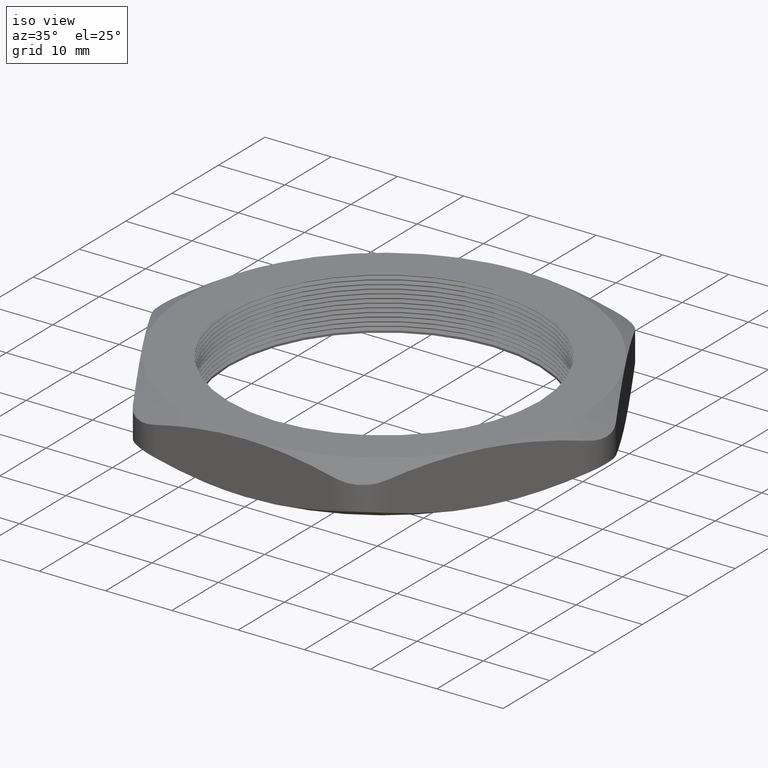
[diagram: clean part render]
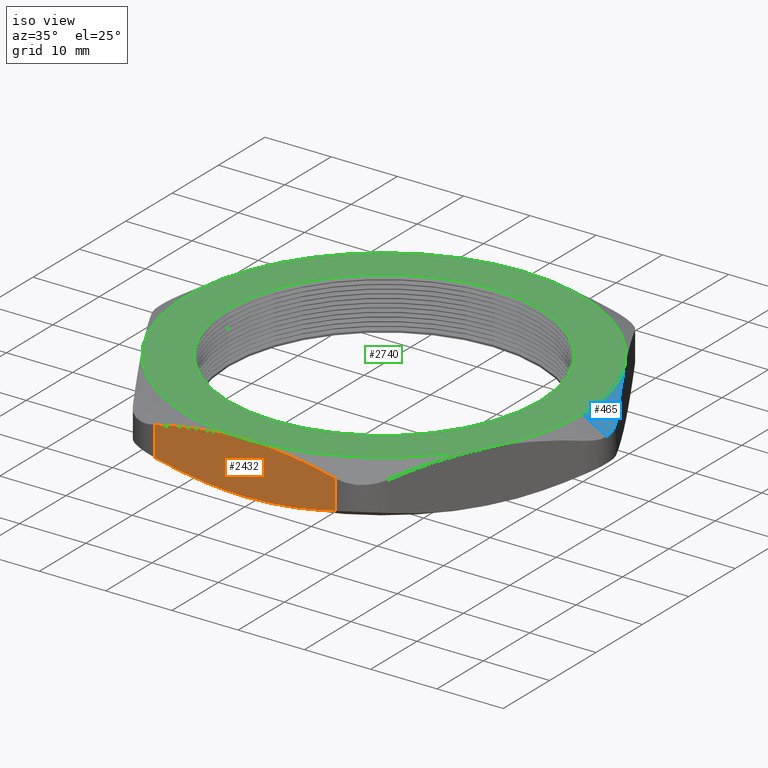
[diagram: same view with three faces highlighted in distinct colors, each labeled with its STEP entity id]
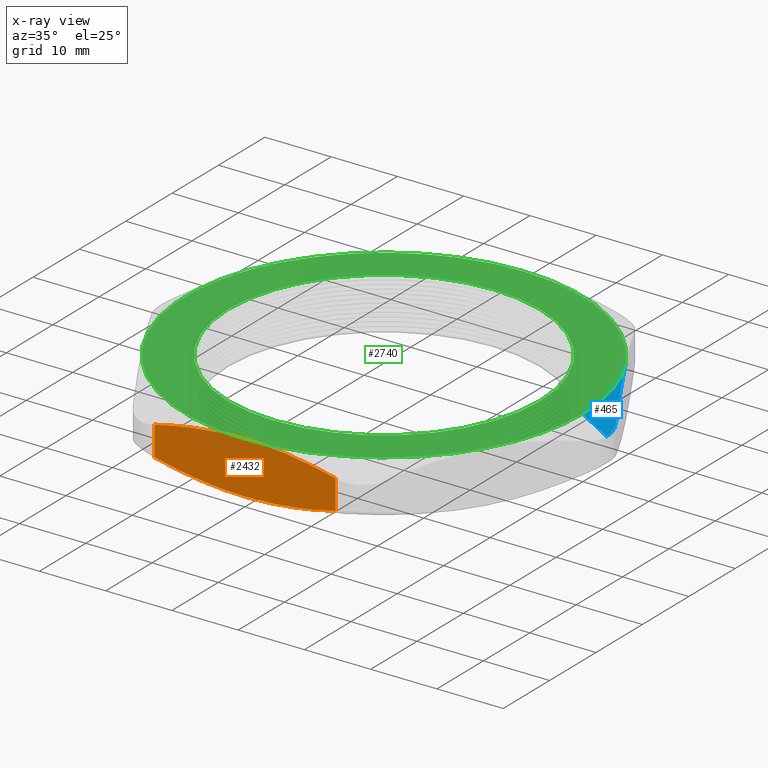
[diagram: x-ray of the same camera — body ghosted, the three highlighted faces saturated]
A machine part, iso view with three faces highlighted in distinct colors.
The next image is the same camera in x-ray (body ghosted, the three faces saturated) — at least one of them is partly hidden behind the body in this view.
Their STEP definitions:

[orange] entity #2432 — the highlighted planar face has unit normal (-0, 1, 0).
#1248 = CARTESIAN_POINT ( 'NONE',  ( 2.365849761790801500E-016, -1.179999999999999900, 0.3100000000000000000 ) ) ;
#1249 = CARTESIAN_POINT ( 'NONE',  ( -0.09043671930185660800, -1.179999999999999900, 0.3100000000000001600 ) ) ;
#1250 = CARTESIAN_POINT ( 'NONE',  ( -0.1803601917600251800, -1.179999999999999500, 0.3039296812339023500 ) ) ;
#1251 = CARTESIAN_POINT ( 'NONE',  ( -0.3592866603774269600, -1.180000000000000200, 0.2809023044652400000 ) ) ;
#1252 = CARTESIAN_POINT ( 'NONE',  ( -0.4483414298499406300, -1.179999999999999700, 0.2639706617955099900 ) ) ;
#1253 = CARTESIAN_POINT ( 'NONE',  ( -0.5369357503462982600, -1.179999999999999900, 0.2427859541343179400 ) ) ;
#1254 = CARTESIAN_POINT ( 'NONE',  ( -0.5369357503463523300, -1.179999999999999900, 0.06721404586569511300 ) ) ;
#1255 = B_SPLINE_CURVE_WITH_KNOTS ( 'NONE', 3,
 ( #1253, #1252, #1251, #1250, #1249, #1248 ),
 .UNSPECIFIED., .F., .F.,
 ( 4, 2, 4 ),
 ( 0.03544491570111547200, 0.04231837440594568600, 0.04919183311077590700 ),
 .UNSPECIFIED. ) ;
#1287 = DIRECTION ( 'NONE',  ( -1.000000000000000000, -2.004957425246442400E-016, 0.0000000000000000000 ) ) ;
#1288 = DIRECTION ( 'NONE',  ( -2.004957425246442400E-016, 1.000000000000000000, 0.0000000000000000000 ) ) ;
#1289 = CARTESIAN_POINT ( 'NONE',  ( -0.6812733176437586500, -1.179999999999999900, 0.3100000000000000000 ) ) ;
#1290 = AXIS2_PLACEMENT_3D ( 'NONE', #1289, #1288, #1287 ) ;
#1291 = PLANE ( 'NONE',  #1290 ) ;
#1292 = FACE_OUTER_BOUND ( 'NONE', #2572, .T. ) ;
#1306 = DIRECTION ( 'NONE',  ( 0.0000000000000000000, 0.0000000000000000000, 1.000000000000000000 ) ) ;
#1307 = VECTOR ( 'NONE', #1306, 39.37007874015748100 ) ;
#1308 = CARTESIAN_POINT ( 'NONE',  ( 0.5369357503463518800, -1.179999999999999700, 0.3100000000000000000 ) ) ;
#1309 = LINE ( 'NONE', #1308, #1307 ) ;
#1310 = CARTESIAN_POINT ( 'NONE',  ( 2.365849761790802000E-016, -1.180000000000000200, 0.0000000000000000000 ) ) ;
#1311 = CARTESIAN_POINT ( 'NONE',  ( 0.04513680144218985800, -1.179999999999999500, -2.407707826447263200E-016 ) ) ;
#1312 = CARTESIAN_POINT ( 'NONE',  ( 0.09040044257290004400, -1.180000000000000200, 0.001500169657117304800 ) ) ;
#1313 = CARTESIAN_POINT ( 'NONE',  ( 0.1584856043568609000, -1.180000000000000200, 0.005994061912108385500 ) ) ;
#1314 = CARTESIAN_POINT ( 'NONE',  ( 0.1812379093699328400, -1.179999999999999900, 0.007868708027574654700 ) ) ;
#1315 = CARTESIAN_POINT ( 'NONE',  ( 0.2264847364169943800, -1.179999999999999700, 0.01231598222474834300 ) ) ;
#1316 = CARTESIAN_POINT ( 'NONE',  ( 0.2490155983964343600, -1.179999999999999900, 0.01489006772394748500 ) ) ;
#1317 = CARTESIAN_POINT ( 'NONE',  ( 0.3612328827272187100, -1.179999999999999500, 0.02941530187154136500 ) ) ;
#1318 = CARTESIAN_POINT ( 'NONE',  ( 0.4496078843157641500, -1.179999999999999300, 0.04633217327872736500 ) ) ;
#1319 = CARTESIAN_POINT ( 'NONE',  ( 0.5369357503463522100, -1.179999999999999700, 0.06721404586569487700 ) ) ;
#1320 = CARTESIAN_POINT ( 'NONE',  ( 0.5369357503463522100, -1.179999999999999700, 0.06721404586569487700 ) ) ;
#1321 = B_SPLINE_CURVE_WITH_KNOTS ( 'NONE', 3,
 ( #1319, #1318, #1317, #1316, #1315, #1314, #1313, #1312, #1311, #1310 ),
 .UNSPECIFIED., .F., .F.,
 ( 4, 2, 2, 2, 4 ),
 ( 0.08256158071241076500, 0.08942644235430620400, 0.09114265776478007500, 0.09285887317525393100, 0.09629130399620164400 ),
 .UNSPECIFIED. ) ;
#1322 = CARTESIAN_POINT ( 'NONE',  ( 2.365849761790802000E-016, -1.180000000000000200, 0.0000000000000000000 ) ) ;
#1512 = CARTESIAN_POINT ( 'NONE',  ( 0.5369357503463522100, -1.179999999999999700, 0.2427859541343050900 ) ) ;
#1513 = CARTESIAN_POINT ( 'NONE',  ( 0.4496078843157642600, -1.179999999999999500, 0.2636678267212726500 ) ) ;
#1514 = CARTESIAN_POINT ( 'NONE',  ( 0.3612328827272187600, -1.179999999999999900, 0.2805846981284586500 ) ) ;
#1515 = CARTESIAN_POINT ( 'NONE',  ( 0.2490155983964342800, -1.179999999999999900, 0.2951099322760525300 ) ) ;
#1516 = CARTESIAN_POINT ( 'NONE',  ( 0.2264847364169941000, -1.180000000000000200, 0.2976840177752518300 ) ) ;
#1517 = CARTESIAN_POINT ( 'NONE',  ( 0.1812379093699325600, -1.179999999999999700, 0.3021312919724253300 ) ) ;
#1518 = CARTESIAN_POINT ( 'NONE',  ( 0.1584856043568612100, -1.179999999999999500, 0.3040059380878916100 ) ) ;
#1519 = CARTESIAN_POINT ( 'NONE',  ( 0.09040044257290041900, -1.179999999999999900, 0.3084998303428827000 ) ) ;
#1520 = CARTESIAN_POINT ( 'NONE',  ( 0.04513680144219005300, -1.179999999999999900, 0.3100000000000001600 ) ) ;
#1521 = CARTESIAN_POINT ( 'NONE',  ( 2.365849761790801500E-016, -1.179999999999999900, 0.3100000000000000000 ) ) ;
#1522 = CARTESIAN_POINT ( 'NONE',  ( 2.365849761790801500E-016, -1.179999999999999900, 0.3100000000000000000 ) ) ;
#1523 = B_SPLINE_CURVE_WITH_KNOTS ( 'NONE', 3,
 ( #1521, #1520, #1519, #1518, #1517, #1516, #1515, #1514, #1513, #1512 ),
 .UNSPECIFIED., .F., .F.,
 ( 4, 2, 2, 2, 4 ),
 ( 0.04919183311077590700, 0.05262236379760327300, 0.05433762914101695300, 0.05605289448443063300, 0.06291395585808536000 ),
 .UNSPECIFIED. ) ;
#1524 = CARTESIAN_POINT ( 'NONE',  ( 0.5369357503463522100, -1.179999999999999700, 0.2427859541343050900 ) ) ;
#1932 = CARTESIAN_POINT ( 'NONE',  ( -0.5369357503462982600, -1.179999999999999900, 0.2427859541343179400 ) ) ;
#2043 = DIRECTION ( 'NONE',  ( 0.0000000000000000000, 0.0000000000000000000, -1.000000000000000000 ) ) ;
#2044 = VECTOR ( 'NONE', #2043, 39.37007874015748100 ) ;
#2045 = CARTESIAN_POINT ( 'NONE',  ( -0.5369357503463522100, -1.179999999999999900, 0.3100000000000000000 ) ) ;
#2046 = LINE ( 'NONE', #2045, #2044 ) ;
#2058 = CARTESIAN_POINT ( 'NONE',  ( -0.5369357503463523300, -1.179999999999999900, 0.06721404586569511300 ) ) ;
#2059 = CARTESIAN_POINT ( 'NONE',  ( -0.4483414298499867100, -1.179999999999999900, 0.04602933820449919800 ) ) ;
#2060 = CARTESIAN_POINT ( 'NONE',  ( -0.3592866603774632100, -1.179999999999999500, 0.02909769553476565500 ) ) ;
#2061 = CARTESIAN_POINT ( 'NONE',  ( -0.1803601917600436700, -1.179999999999999900, 0.006070318766098837900 ) ) ;
#2062 = CARTESIAN_POINT ( 'NONE',  ( -0.09043671930186598900, -1.179999999999999900, -2.280986361897407400E-016 ) ) ;
#2063 = CARTESIAN_POINT ( 'NONE',  ( 2.365849761790802000E-016, -1.180000000000000200, 0.0000000000000000000 ) ) ;
#2078 = B_SPLINE_CURVE_WITH_KNOTS ( 'NONE', 3,
 ( #2063, #2062, #2061, #2060, #2059, #2058 ),
 .UNSPECIFIED., .F., .F.,
 ( 4, 2, 4 ),
 ( 0.09629130399620164400, 0.1031685698360219200, 0.1100458356758422000 ),
 .UNSPECIFIED. ) ;
#2420 = EDGE_CURVE ( 'NONE', #2743, #2541, #1255, .T. ) ;
#2421 = ORIENTED_EDGE ( 'NONE', *, *, #2784, .T. ) ;
#2422 = VERTEX_POINT ( 'NONE', #1254 ) ;
#2432 = ADVANCED_FACE ( 'NONE', ( #1292 ), #1291, .F. ) ;
#2433 = ORIENTED_EDGE ( 'NONE', *, *, #2443, .F. ) ;
#2443 = EDGE_CURVE ( 'NONE', #2444, #2445, #1321, .T. ) ;
#2444 = VERTEX_POINT ( 'NONE', #1320 ) ;
#2445 = VERTEX_POINT ( 'NONE', #1322 ) ;
#2446 = ORIENTED_EDGE ( 'NONE', *, *, #2447, .T. ) ;
#2447 = EDGE_CURVE ( 'NONE', #2444, #2538, #1309, .T. ) ;
#2538 = VERTEX_POINT ( 'NONE', #1524 ) ;
#2539 = ORIENTED_EDGE ( 'NONE', *, *, #2540, .F. ) ;
#2540 = EDGE_CURVE ( 'NONE', #2541, #2538, #1523, .T. ) ;
#2541 = VERTEX_POINT ( 'NONE', #1522 ) ;
#2572 = EDGE_LOOP ( 'NONE', ( #2433, #2446, #2539, #2742, #2421, #2796 ) ) ;
#2742 = ORIENTED_EDGE ( 'NONE', *, *, #2420, .F. ) ;
#2743 = VERTEX_POINT ( 'NONE', #1932 ) ;
#2784 = EDGE_CURVE ( 'NONE', #2743, #2422, #2046, .T. ) ;
#2796 = ORIENTED_EDGE ( 'NONE', *, *, #2797, .F. ) ;
#2797 = EDGE_CURVE ( 'NONE', #2445, #2422, #2078, .T. ) ;

[blue] entity #465 — the highlighted conical surface has half-angle 60 deg.
#287 = DIRECTION ( 'NONE',  ( 1.000000000000000000, 0.0000000000000000000, 0.0000000000000000000 ) ) ;
#288 = DIRECTION ( 'NONE',  ( 0.0000000000000000000, 0.0000000000000000000, -1.000000000000000000 ) ) ;
#295 = CARTESIAN_POINT ( 'NONE',  ( 0.0000000000000000000, 0.0000000000000000000, 0.3100000000000000000 ) ) ;
#296 = AXIS2_PLACEMENT_3D ( 'NONE', #295, #288, #287 ) ;
#297 = CONICAL_SURFACE ( 'NONE', #296, 1.180000000000000200, 1.047197551196600100 ) ;
#298 = FACE_OUTER_BOUND ( 'NONE', #2605, .T. ) ;
#465 = ADVANCED_FACE ( 'NONE', ( #298 ), #297, .T. ) ;
#697 = ORIENTED_EDGE ( 'NONE', *, *, #698, .T. ) ;
#698 = EDGE_CURVE ( 'NONE', #2608, #699, #1108, .T. ) ;
#699 = VERTEX_POINT ( 'NONE', #1104 ) ;
#700 = VERTEX_POINT ( 'NONE', #1103 ) ;
#1103 = CARTESIAN_POINT ( 'NONE',  ( 1.290377851638813600, 0.1250000000000003600, 0.2427859541343050100 ) ) ;
#1104 = CARTESIAN_POINT ( 'NONE',  ( 1.323871500692703800, -1.232579635649854100E-024, 0.2269357503463525200 ) ) ;
#1105 = DIRECTION ( 'NONE',  ( 0.8660254037844397100, 0.0000000000000000000, -0.4999999999999979500 ) ) ;
#1106 = VECTOR ( 'NONE', #1105, 39.37007874015748900 ) ;
#1107 = CARTESIAN_POINT ( 'NONE',  ( 1.180000000000000200, 0.0000000000000000000, 0.3100000000000000000 ) ) ;
#1108 = LINE ( 'NONE', #1107, #1106 ) ;
#1587 = CARTESIAN_POINT ( 'NONE',  ( 1.323871500692704400, 0.01095095147729039700, 0.2269357503463524700 ) ) ;
#1588 = CARTESIAN_POINT ( 'NONE',  ( 1.323871500692703800, -1.232579635649854100E-024, 0.2269357503463525200 ) ) ;
#1589 = B_SPLINE_CURVE_WITH_KNOTS ( 'NONE', 3,
 ( #1588, #1587, #1643, #1642, #1641, #1640, #1639, #1638 ),
 .UNSPECIFIED., .F., .F.,
 ( 4, 2, 2, 4 ),
 ( 0.003343581398575299100, 0.004176957635011804700, 0.005010333871448310700, 0.006677086344321323700 ),
 .UNSPECIFIED. ) ;
#1629 = CARTESIAN_POINT ( 'NONE',  ( 1.021909976465638100, 0.5899999999999999700, 0.3100000000000000000 ) ) ;
#1630 = CARTESIAN_POINT ( 'NONE',  ( 1.067459181867329100, 0.5111064619998796400, 0.3100000000000000500 ) ) ;
#1631 = CARTESIAN_POINT ( 'NONE',  ( 1.112566298939980000, 0.4329786434470912500, 0.3038445522537129900 ) ) ;
#1632 = CARTESIAN_POINT ( 'NONE',  ( 1.202005897894103900, 0.2780647138499645600, 0.2807479695387029000 ) ) ;
#1633 = CARTESIAN_POINT ( 'NONE',  ( 1.246341198180637200, 0.2012737211848660000, 0.2638460768298028200 ) ) ;
#1634 = CARTESIAN_POINT ( 'NONE',  ( 1.290377851638813600, 0.1250000000000003600, 0.2427859541343050100 ) ) ;
#1638 = CARTESIAN_POINT ( 'NONE',  ( 1.290377851638813600, 0.1250000000000003600, 0.2427859541343050100 ) ) ;
#1639 = CARTESIAN_POINT ( 'NONE',  ( 1.301163024300264800, 0.1063195329819646200, 0.2376280449449062200 ) ) ;
#1640 = CARTESIAN_POINT ( 'NONE',  ( 1.309608273902644400, 0.08602256121026832800, 0.2336403273867144700 ) ) ;
#1641 = CARTESIAN_POINT ( 'NONE',  ( 1.318085377249127700, 0.05456655859989943700, 0.2296491859462562200 ) ) ;
#1642 = CARTESIAN_POINT ( 'NONE',  ( 1.320238384401354300, 0.04387041525387968400, 0.2286388179600905800 ) ) ;
#1643 = CARTESIAN_POINT ( 'NONE',  ( 1.323141469423208900, 0.02203945126250706600, 0.2272774143254681600 ) ) ;
#1645 = B_SPLINE_CURVE_WITH_KNOTS ( 'NONE', 3,
 ( #1634, #1633, #1632, #1631, #1630, #1629 ),
 .UNSPECIFIED., .F., .F.,
 ( 4, 2, 4 ),
 ( 0.003767047510153077700, 0.01063822244227694300, 0.01750939737440080500 ),
 .UNSPECIFIED. ) ;
#1651 = CARTESIAN_POINT ( 'NONE',  ( 1.021909976465638100, 0.5899999999999999700, 0.3100000000000000000 ) ) ;
#1652 = CARTESIAN_POINT ( 'NONE',  ( 1.180000000000000200, 0.0000000000000000000, 0.3100000000000000000 ) ) ;
#1653 = DIRECTION ( 'NONE',  ( 1.000000000000000000, 0.0000000000000000000, 0.0000000000000000000 ) ) ;
#1654 = DIRECTION ( 'NONE',  ( 0.0000000000000000000, 0.0000000000000000000, 1.000000000000000000 ) ) ;
#1655 = CARTESIAN_POINT ( 'NONE',  ( 0.0000000000000000000, 0.0000000000000000000, 0.3100000000000000000 ) ) ;
#1656 = AXIS2_PLACEMENT_3D ( 'NONE', #1655, #1654, #1653 ) ;
#1657 = CIRCLE ( 'NONE', #1656, 1.180000000000000200 ) ;
#2583 = ORIENTED_EDGE ( 'NONE', *, *, #2584, .T. ) ;
#2584 = EDGE_CURVE ( 'NONE', #699, #700, #1589, .T. ) ;
#2585 = ORIENTED_EDGE ( 'NONE', *, *, #2586, .T. ) ;
#2586 = EDGE_CURVE ( 'NONE', #700, #2609, #1645, .T. ) ;
#2605 = EDGE_LOOP ( 'NONE', ( #2606, #697, #2583, #2585 ) ) ;
#2606 = ORIENTED_EDGE ( 'NONE', *, *, #2607, .F. ) ;
#2607 = EDGE_CURVE ( 'NONE', #2608, #2609, #1657, .T. ) ;
#2608 = VERTEX_POINT ( 'NONE', #1652 ) ;
#2609 = VERTEX_POINT ( 'NONE', #1651 ) ;

[green] entity #2740 — the highlighted planar face has unit normal (0, 0, -1).
#406 = CARTESIAN_POINT ( 'NONE',  ( 0.9250000000000002700, 1.145044757202775500E-016, 0.3100000000000000000 ) ) ;
#407 = CARTESIAN_POINT ( 'NONE',  ( -0.9250000000000002700, 0.0000000000000000000, 0.3100000000000000000 ) ) ;
#408 = DIRECTION ( 'NONE',  ( 1.000000000000000000, 0.0000000000000000000, 0.0000000000000000000 ) ) ;
#409 = DIRECTION ( 'NONE',  ( 0.0000000000000000000, 0.0000000000000000000, 1.000000000000000000 ) ) ;
#410 = AXIS2_PLACEMENT_3D ( 'NONE', #417, #409, #408 ) ;
#411 = CIRCLE ( 'NONE', #410, 0.9250000000000002700 ) ;
#417 = CARTESIAN_POINT ( 'NONE',  ( 0.0000000000000000000, 0.0000000000000000000, 0.3100000000000000000 ) ) ;
#530 = EDGE_CURVE ( 'NONE', #531, #532, #411, .T. ) ;
#531 = VERTEX_POINT ( 'NONE', #407 ) ;
#532 = VERTEX_POINT ( 'NONE', #406 ) ;
#1262 = CARTESIAN_POINT ( 'NONE',  ( -1.182924880895401300E-016, 1.180000000000000200, 0.3100000000000000000 ) ) ;
#1268 = CARTESIAN_POINT ( 'NONE',  ( -1.021909976465637900, -0.5899999999999995200, 0.3100000000000000000 ) ) ;
#1483 = CARTESIAN_POINT ( 'NONE',  ( 1.021909976465637600, -0.5900000000000000800, 0.3100000000000000000 ) ) ;
#1522 = CARTESIAN_POINT ( 'NONE',  ( 2.365849761790801500E-016, -1.179999999999999900, 0.3100000000000000000 ) ) ;
#1651 = CARTESIAN_POINT ( 'NONE',  ( 1.021909976465638100, 0.5899999999999999700, 0.3100000000000000000 ) ) ;
#1652 = CARTESIAN_POINT ( 'NONE',  ( 1.180000000000000200, 0.0000000000000000000, 0.3100000000000000000 ) ) ;
#1653 = DIRECTION ( 'NONE',  ( 1.000000000000000000, 0.0000000000000000000, 0.0000000000000000000 ) ) ;
#1654 = DIRECTION ( 'NONE',  ( 0.0000000000000000000, 0.0000000000000000000, 1.000000000000000000 ) ) ;
#1655 = CARTESIAN_POINT ( 'NONE',  ( 0.0000000000000000000, 0.0000000000000000000, 0.3100000000000000000 ) ) ;
#1656 = AXIS2_PLACEMENT_3D ( 'NONE', #1655, #1654, #1653 ) ;
#1657 = CIRCLE ( 'NONE', #1656, 1.180000000000000200 ) ;
#1791 = CARTESIAN_POINT ( 'NONE',  ( -1.021909976465637400, 0.5899999999999999700, 0.3100000000000000000 ) ) ;
#1869 = CARTESIAN_POINT ( 'NONE',  ( 0.0000000000000000000, 0.0000000000000000000, 0.3100000000000000000 ) ) ;
#1870 = AXIS2_PLACEMENT_3D ( 'NONE', #1869, #1886, #1921 ) ;
#1871 = CIRCLE ( 'NONE', #1870, 0.9250000000000002700 ) ;
#1886 = DIRECTION ( 'NONE',  ( 0.0000000000000000000, 0.0000000000000000000, 1.000000000000000000 ) ) ;
#1921 = DIRECTION ( 'NONE',  ( 1.000000000000000000, 0.0000000000000000000, 0.0000000000000000000 ) ) ;
#1922 = CIRCLE ( 'NONE', #1988, 1.180000000000000200 ) ;
#1923 = DIRECTION ( 'NONE',  ( 1.000000000000000000, 0.0000000000000000000, 0.0000000000000000000 ) ) ;
#1924 = DIRECTION ( 'NONE',  ( 0.0000000000000000000, 0.0000000000000000000, 1.000000000000000000 ) ) ;
#1925 = CARTESIAN_POINT ( 'NONE',  ( 0.0000000000000000000, 0.0000000000000000000, 0.3100000000000000000 ) ) ;
#1926 = AXIS2_PLACEMENT_3D ( 'NONE', #1925, #1924, #1923 ) ;
#1927 = CIRCLE ( 'NONE', #1926, 1.180000000000000200 ) ;
#1935 = DIRECTION ( 'NONE',  ( -1.000000000000000000, 0.0000000000000000000, 0.0000000000000000000 ) ) ;
#1936 = DIRECTION ( 'NONE',  ( 0.0000000000000000000, 0.0000000000000000000, -1.000000000000000000 ) ) ;
#1937 = CARTESIAN_POINT ( 'NONE',  ( 5.463695987328526400E-016, 2.360000000000000800, 0.3100000000000000000 ) ) ;
#1938 = AXIS2_PLACEMENT_3D ( 'NONE', #1937, #1936, #1935 ) ;
#1939 = PLANE ( 'NONE',  #1938 ) ;
#1940 = FACE_OUTER_BOUND ( 'NONE', #2785, .T. ) ;
#1941 = FACE_BOUND ( 'NONE', #2709, .T. ) ;
#1985 = DIRECTION ( 'NONE',  ( 1.000000000000000000, 0.0000000000000000000, 0.0000000000000000000 ) ) ;
#1986 = DIRECTION ( 'NONE',  ( 0.0000000000000000000, 0.0000000000000000000, 1.000000000000000000 ) ) ;
#1987 = CARTESIAN_POINT ( 'NONE',  ( 0.0000000000000000000, 0.0000000000000000000, 0.3100000000000000000 ) ) ;
#1988 = AXIS2_PLACEMENT_3D ( 'NONE', #1987, #1986, #1985 ) ;
#2053 = DIRECTION ( 'NONE',  ( 1.000000000000000000, 0.0000000000000000000, 0.0000000000000000000 ) ) ;
#2054 = DIRECTION ( 'NONE',  ( 0.0000000000000000000, 0.0000000000000000000, 1.000000000000000000 ) ) ;
#2055 = CARTESIAN_POINT ( 'NONE',  ( 0.0000000000000000000, 0.0000000000000000000, 0.3100000000000000000 ) ) ;
#2056 = AXIS2_PLACEMENT_3D ( 'NONE', #2055, #2054, #2053 ) ;
#2057 = CIRCLE ( 'NONE', #2056, 1.180000000000000200 ) ;
#2125 = DIRECTION ( 'NONE',  ( 1.000000000000000000, 0.0000000000000000000, 0.0000000000000000000 ) ) ;
#2140 = DIRECTION ( 'NONE',  ( 0.0000000000000000000, 0.0000000000000000000, 1.000000000000000000 ) ) ;
#2141 = CARTESIAN_POINT ( 'NONE',  ( 0.0000000000000000000, 0.0000000000000000000, 0.3100000000000000000 ) ) ;
#2142 = AXIS2_PLACEMENT_3D ( 'NONE', #2141, #2140, #2125 ) ;
#2143 = CIRCLE ( 'NONE', #2142, 1.180000000000000200 ) ;
#2191 = DIRECTION ( 'NONE',  ( 1.000000000000000000, 0.0000000000000000000, 0.0000000000000000000 ) ) ;
#2192 = DIRECTION ( 'NONE',  ( 0.0000000000000000000, 0.0000000000000000000, 1.000000000000000000 ) ) ;
#2193 = AXIS2_PLACEMENT_3D ( 'NONE', #2205, #2192, #2191 ) ;
#2194 = CIRCLE ( 'NONE', #2193, 1.180000000000000200 ) ;
#2195 = DIRECTION ( 'NONE',  ( 1.000000000000000000, 0.0000000000000000000, 0.0000000000000000000 ) ) ;
#2196 = DIRECTION ( 'NONE',  ( 0.0000000000000000000, 0.0000000000000000000, 1.000000000000000000 ) ) ;
#2197 = CARTESIAN_POINT ( 'NONE',  ( 0.0000000000000000000, 0.0000000000000000000, 0.3100000000000000000 ) ) ;
#2198 = AXIS2_PLACEMENT_3D ( 'NONE', #2197, #2196, #2195 ) ;
#2199 = CIRCLE ( 'NONE', #2198, 1.180000000000000200 ) ;
#2205 = CARTESIAN_POINT ( 'NONE',  ( 0.0000000000000000000, 0.0000000000000000000, 0.3100000000000000000 ) ) ;
#2418 = VERTEX_POINT ( 'NONE', #1262 ) ;
#2442 = VERTEX_POINT ( 'NONE', #1268 ) ;
#2533 = VERTEX_POINT ( 'NONE', #1483 ) ;
#2541 = VERTEX_POINT ( 'NONE', #1522 ) ;
#2607 = EDGE_CURVE ( 'NONE', #2608, #2609, #1657, .T. ) ;
#2608 = VERTEX_POINT ( 'NONE', #1652 ) ;
#2609 = VERTEX_POINT ( 'NONE', #1651 ) ;
#2667 = VERTEX_POINT ( 'NONE', #1791 ) ;
#2709 = EDGE_LOOP ( 'NONE', ( #2783, #2833 ) ) ;
#2715 = EDGE_CURVE ( 'NONE', #532, #531, #1871, .T. ) ;
#2716 = ORIENTED_EDGE ( 'NONE', *, *, #2748, .T. ) ;
#2740 = ADVANCED_FACE ( 'NONE', ( #1941, #1940 ), #1939, .F. ) ;
#2748 = EDGE_CURVE ( 'NONE', #2418, #2667, #1927, .T. ) ;
#2749 = ORIENTED_EDGE ( 'NONE', *, *, #2750, .T. ) ;
#2750 = EDGE_CURVE ( 'NONE', #2667, #2442, #1922, .T. ) ;
#2751 = ORIENTED_EDGE ( 'NONE', *, *, #2840, .T. ) ;
#2783 = ORIENTED_EDGE ( 'NONE', *, *, #530, .F. ) ;
#2785 = EDGE_LOOP ( 'NONE', ( #2716, #2749, #2751, #2841, #2800, #2802, #2822 ) ) ;
#2800 = ORIENTED_EDGE ( 'NONE', *, *, #2801, .T. ) ;
#2801 = EDGE_CURVE ( 'NONE', #2533, #2608, #2057, .T. ) ;
#2802 = ORIENTED_EDGE ( 'NONE', *, *, #2607, .T. ) ;
#2822 = ORIENTED_EDGE ( 'NONE', *, *, #2823, .T. ) ;
#2823 = EDGE_CURVE ( 'NONE', #2609, #2418, #2143, .T. ) ;
#2833 = ORIENTED_EDGE ( 'NONE', *, *, #2715, .F. ) ;
#2840 = EDGE_CURVE ( 'NONE', #2442, #2541, #2199, .T. ) ;
#2841 = ORIENTED_EDGE ( 'NONE', *, *, #2842, .T. ) ;
#2842 = EDGE_CURVE ( 'NONE', #2541, #2533, #2194, .T. ) ;